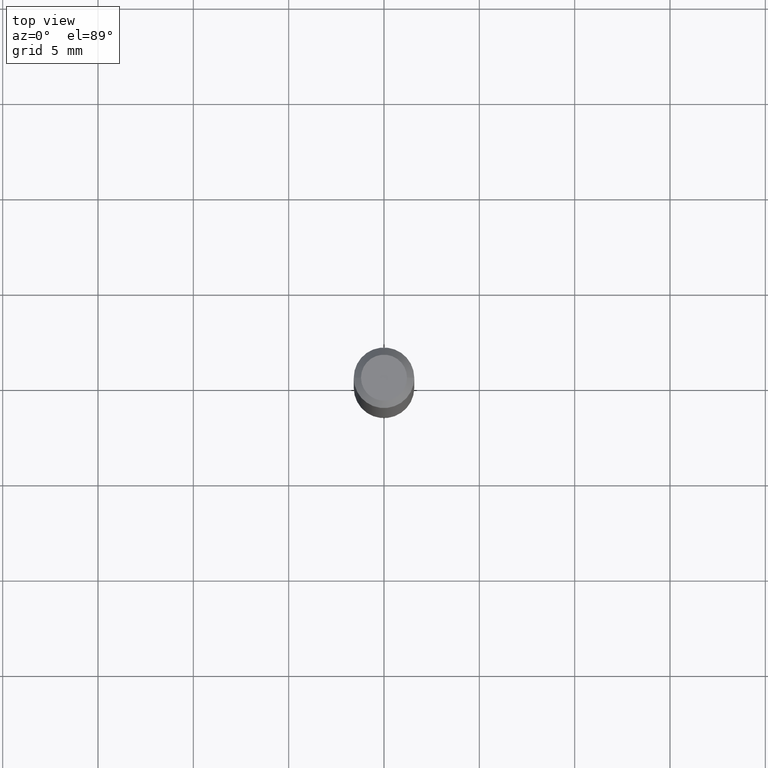
[diagram: clean part render]
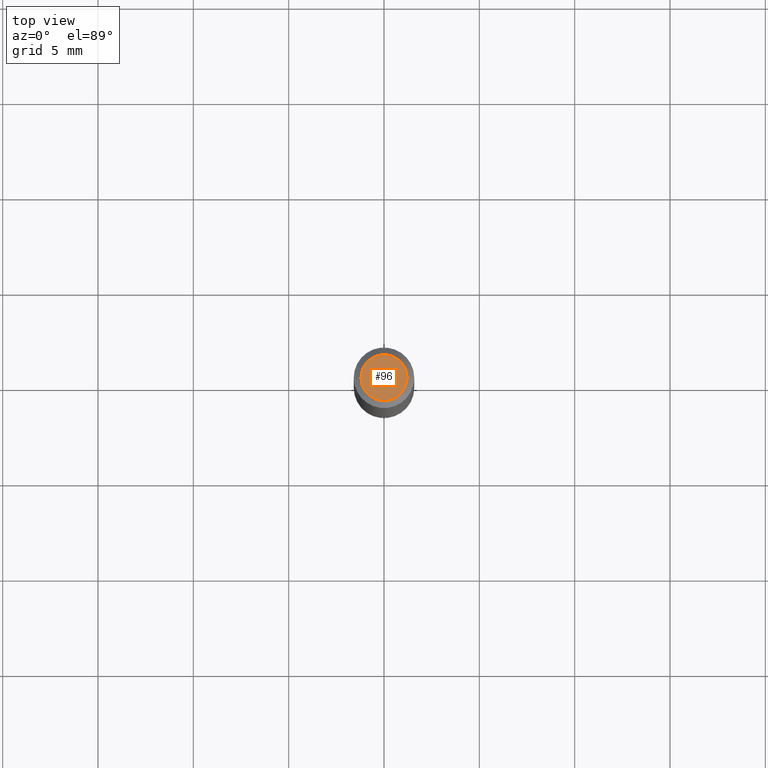
[diagram: same view with one face highlighted and labeled with its STEP entity id]
A machine part, top view. The second image highlights one B-rep face of the part: STEP entity #96.
In plain terms, the highlighted planar face has unit normal (0, -0, -1).
Its self-contained STEP definition (entity closure, byte-faithful):
#19 = EDGE_CURVE ( 'NONE', #162, #98, #398, .T. ) ;
#21 = FACE_OUTER_BOUND ( 'NONE', #274, .T. ) ;
#65 = DIRECTION ( 'NONE',  ( -1.000000000000000000, 6.982962677686265922E-15, -4.876176775795935793E-29 ) ) ;
#90 = AXIS2_PLACEMENT_3D ( 'NONE', #276, #94, #65 ) ;
#94 = DIRECTION ( 'NONE',  ( 2.438088387897960049E-29, -3.491481338843145188E-15, -1.000000000000000000 ) ) ;
#96 = ADVANCED_FACE ( 'NONE', ( #21 ), #168, .F. ) ;
#98 = VERTEX_POINT ( 'NONE', #318 ) ;
#104 = ORIENTED_EDGE ( 'NONE', *, *, #19, .T. ) ;
#115 = CIRCLE ( 'NONE', #290, 0.04749999999999999362 ) ;
#126 = DIRECTION ( 'NONE',  ( 1.000000000000000000, -6.982962677686267499E-15, 4.852736867747366768E-29 ) ) ;
#135 = DIRECTION ( 'NONE',  ( -2.445468806185136597E-29, 3.491481338843145583E-15, 1.000000000000000000 ) ) ;
#157 = CARTESIAN_POINT ( 'NONE',  ( -3.597438323505677396E-45, 5.136188506020282969E-31, 1.471062854863228050E-16 ) ) ;
#162 = VERTEX_POINT ( 'NONE', #361 ) ;
#168 = PLANE ( 'NONE',  #90 ) ;
#182 = EDGE_CURVE ( 'NONE', #98, #162, #115, .T. ) ;
#244 = CARTESIAN_POINT ( 'NONE',  ( -3.597438323505677396E-45, 5.136188506020282969E-31, 1.471062854863228050E-16 ) ) ;
#274 = EDGE_LOOP ( 'NONE', ( #459, #104 ) ) ;
#276 = CARTESIAN_POINT ( 'NONE',  ( 3.316907271900976096E-16, 0.04749999999999999362, -9.229222085188799396E-17 ) ) ;
#290 = AXIS2_PLACEMENT_3D ( 'NONE', #157, #298, #126 ) ;
#298 = DIRECTION ( 'NONE',  ( -2.445468806185136597E-29, 3.491481338843145583E-15, 1.000000000000000000 ) ) ;
#318 = CARTESIAN_POINT ( 'NONE',  ( -0.04749999999999999362, 3.578768372314212971E-16, 1.471062854863204137E-16 ) ) ;
#361 = CARTESIAN_POINT ( 'NONE',  ( 0.04749999999999999362, -4.035134999187575172E-16, 1.471062854863253934E-16 ) ) ;
#398 = CIRCLE ( 'NONE', #402, 0.04749999999999999362 ) ;
#402 = AXIS2_PLACEMENT_3D ( 'NONE', #244, #135, #458 ) ;
#458 = DIRECTION ( 'NONE',  ( 1.000000000000000000, -6.982962677686267499E-15, 4.852736867747366768E-29 ) ) ;
#459 = ORIENTED_EDGE ( 'NONE', *, *, #182, .T. ) ;